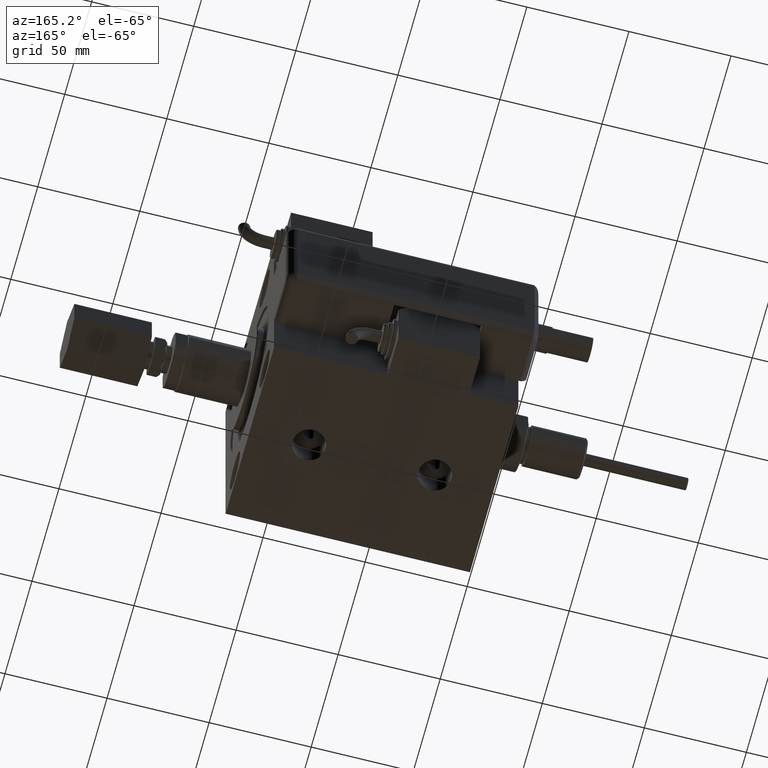
[diagram: clean part render]
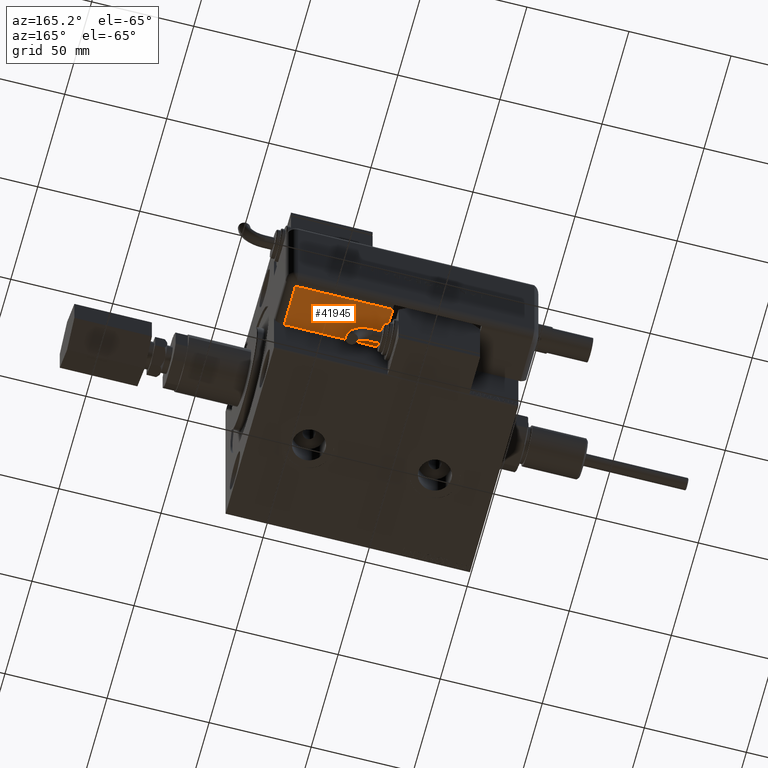
[diagram: same view with one face highlighted and labeled with its STEP entity id]
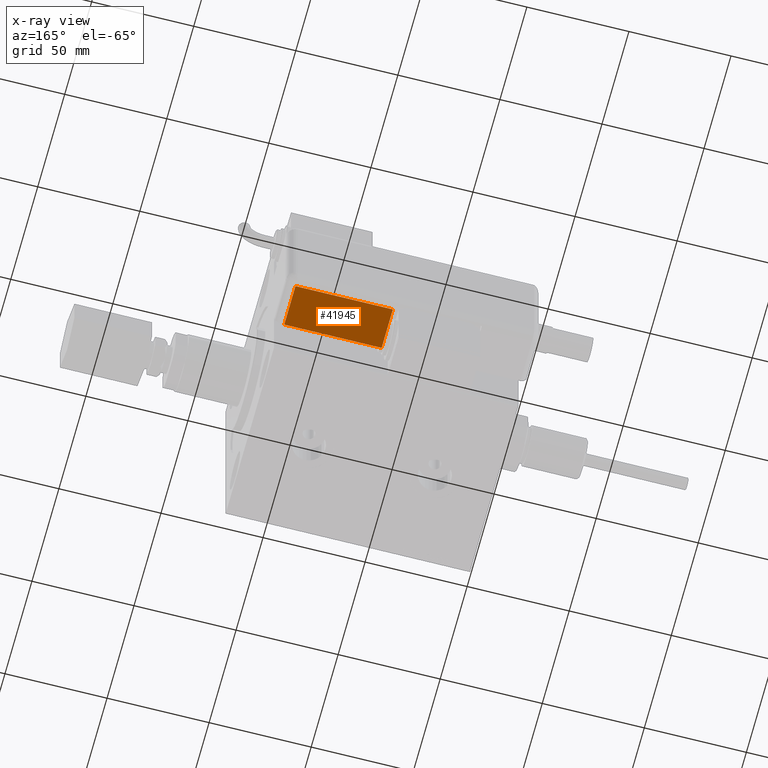
[diagram: x-ray of the same camera — body ghosted, the highlighted face saturated]
A machine part, auxiliary view. The second image highlights one B-rep face of the part: STEP entity #41945.
The next image is the same camera in x-ray: the body ghosted, the highlighted face saturated — about 0% of this face is hidden behind the body in this view.
In plain terms, the highlighted planar face has unit normal (-0, 0, 1).
Its self-contained STEP definition (entity closure, byte-faithful):
#4754 = EDGE_CURVE ( 'NONE', #52433, #48818, #23897, .T. ) ;
#5031 = VERTEX_POINT ( 'NONE', #27317 ) ;
#9452 = EDGE_CURVE ( 'NONE', #5031, #52433, #40464, .T. ) ;
#11155 = DIRECTION ( 'NONE',  ( 0.000000000000000000, 0.000000000000000000, -1.000000000000000000 ) ) ;
#11473 = EDGE_CURVE ( 'NONE', #26690, #48818, #54718, .T. ) ;
#13356 = ORIENTED_EDGE ( 'NONE', *, *, #11473, .T. ) ;
#15999 = DIRECTION ( 'NONE',  ( 1.000000000000000000, 0.000000000000000000, -0.000000000000000000 ) ) ;
#16196 = CARTESIAN_POINT ( 'NONE',  ( -28.99999999999999645, 22.99999999999998934, 52.70000000000000995 ) ) ;
#17086 = ORIENTED_EDGE ( 'NONE', *, *, #4754, .F. ) ;
#21537 = DIRECTION ( 'NONE',  ( 0.000000000000000000, -1.000000000000000000, 0.000000000000000000 ) ) ;
#22981 = VECTOR ( 'NONE', #58196, 1000.000000000000000 ) ;
#23897 = LINE ( 'NONE', #52910, #38811 ) ;
#26578 = LINE ( 'NONE', #41098, #50563 ) ;
#26690 = VERTEX_POINT ( 'NONE', #26931 ) ;
#26931 = CARTESIAN_POINT ( 'NONE',  ( -28.99999999999999645, 20.79999999999998295, 5.000000000000004441 ) ) ;
#27317 = CARTESIAN_POINT ( 'NONE',  ( -28.99999999999999645, 20.79999999999998295, 52.70000000000000995 ) ) ;
#28607 = FACE_OUTER_BOUND ( 'NONE', #41939, .T. ) ;
#31118 = PLANE ( 'NONE',  #53163 ) ;
#33747 = ORIENTED_EDGE ( 'NONE', *, *, #9452, .F. ) ;
#38811 = VECTOR ( 'NONE', #43767, 1000.000000000000000 ) ;
#39905 = CARTESIAN_POINT ( 'NONE',  ( -28.99999999999999645, -1.040834085586084257E-14, 5.000000000000004441 ) ) ;
#40464 = LINE ( 'NONE', #16196, #50094 ) ;
#41098 = CARTESIAN_POINT ( 'NONE',  ( -28.99999999999999645, 20.79999999999998295, 120.7000000000000028 ) ) ;
#41677 = CARTESIAN_POINT ( 'NONE',  ( -28.99999999999999645, -9.421223957302264279E-15, 52.70000000000000995 ) ) ;
#41939 = EDGE_LOOP ( 'NONE', ( #17086, #33747, #55106, #13356 ) ) ;
#41945 = ADVANCED_FACE ( 'NONE', ( #28607 ), #31118, .F. ) ;
#43767 = DIRECTION ( 'NONE',  ( -0.000000000000000000, -0.000000000000000000, -1.000000000000000000 ) ) ;
#48818 = VERTEX_POINT ( 'NONE', #58845 ) ;
#49304 = EDGE_CURVE ( 'NONE', #5031, #26690, #26578, .T. ) ;
#50037 = DIRECTION ( 'NONE',  ( -0.000000000000000000, 0.000000000000000000, -1.000000000000000000 ) ) ;
#50094 = VECTOR ( 'NONE', #21537, 1000.000000000000000 ) ;
#50563 = VECTOR ( 'NONE', #11155, 1000.000000000000000 ) ;
#52433 = VERTEX_POINT ( 'NONE', #41677 ) ;
#52910 = CARTESIAN_POINT ( 'NONE',  ( -28.99999999999999645, -9.421223957302265857E-15, 120.7000000000000028 ) ) ;
#53163 = AXIS2_PLACEMENT_3D ( 'NONE', #60429, #15999, #50037 ) ;
#54718 = LINE ( 'NONE', #39905, #22981 ) ;
#55106 = ORIENTED_EDGE ( 'NONE', *, *, #49304, .T. ) ;
#58196 = DIRECTION ( 'NONE',  ( 0.000000000000000000, -1.000000000000000000, 0.000000000000000000 ) ) ;
#58845 = CARTESIAN_POINT ( 'NONE',  ( -28.99999999999999645, -9.421223957302265857E-15, 5.000000000000004441 ) ) ;
#60429 = CARTESIAN_POINT ( 'NONE',  ( -28.99999999999999645, 25.79999999999998295, 120.7000000000000028 ) ) ;